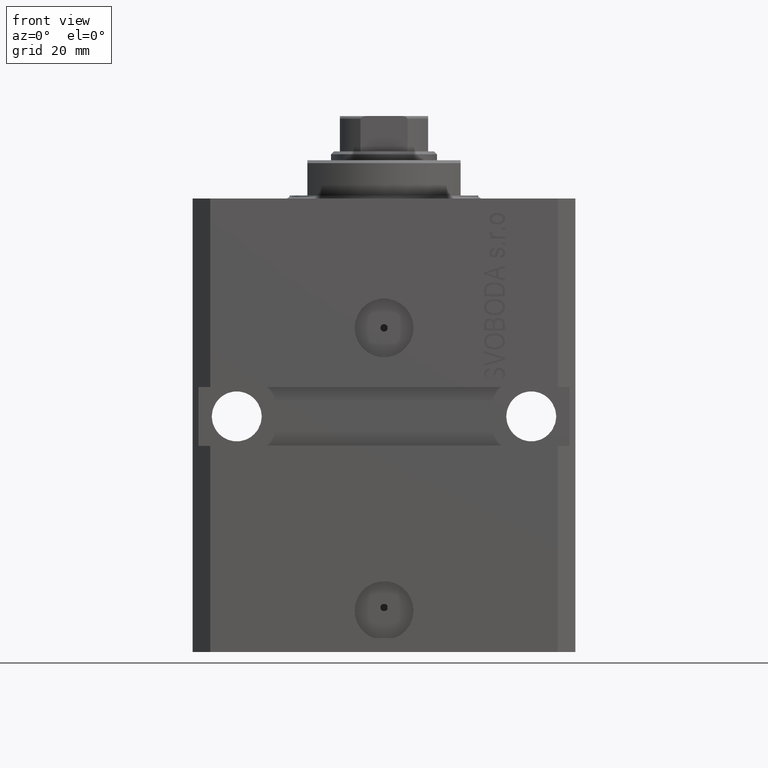
[diagram: clean part render]
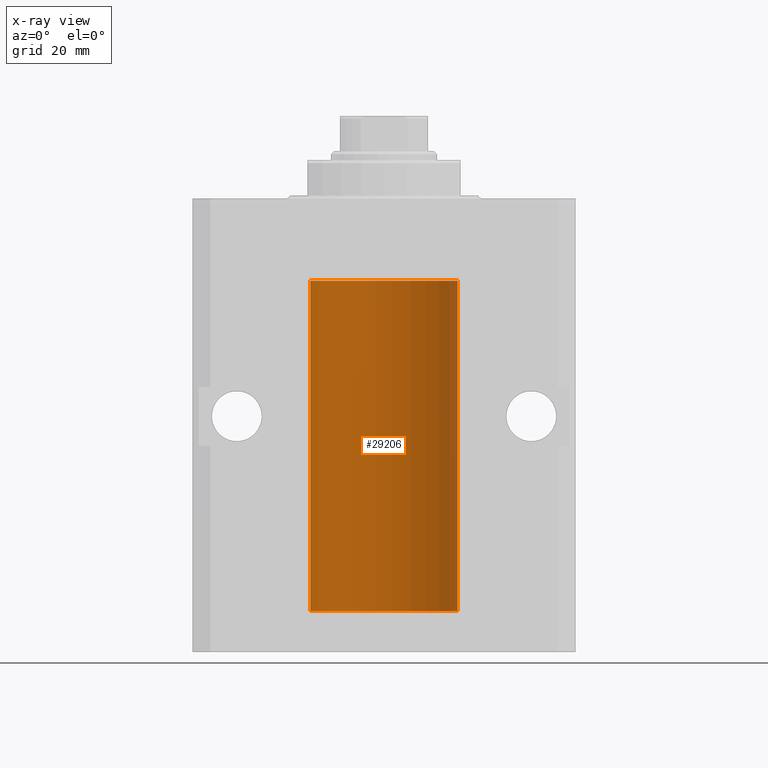
[diagram: x-ray — body ghosted, one internal face saturated and labeled with its STEP entity id]
A machine part, front view, then the same camera in x-ray: the body is ghosted and one INTERNAL B-rep face — a face not visible from any outside direction — is saturated and labeled: STEP entity #29206.
In plain terms, the highlighted cylindrical surface (partial cylindrical patch) has radius 12.5 mm, axis along (0, 0, 1).
Its self-contained STEP definition (entity closure, byte-faithful):
#816 = ORIENTED_EDGE ( 'NONE', *, *, #5009, .T. ) ;
#1518 = LINE ( 'NONE', #26101, #31913 ) ;
#1644 = B_SPLINE_CURVE_WITH_KNOTS ( 'NONE', 3,
 ( #26077, #33009, #22033, #26314, #43974, #21794, #36347, #14868 ),
 .UNSPECIFIED., .F., .F.,
 ( 4, 2, 2, 4 ),
 ( 0.0009773924225142606621, 0.001221629287363811033, 0.001465866152213361404, 0.001954339881912461711 ),
 .UNSPECIFIED. ) ;
#1859 = CARTESIAN_POINT ( 'NONE',  ( 12.49631206032075958, 0.3252904079142805438, -21.44139700214925526 ) ) ;
#1964 = EDGE_CURVE ( 'NONE', #12797, #20929, #11732, .T. ) ;
#2098 = CARTESIAN_POINT ( 'NONE',  ( 12.48520578595314845, 0.6087855079133686065, -21.83656717509346024 ) ) ;
#2174 = EDGE_LOOP ( 'NONE', ( #10690, #38177, #40612, #3910, #28392, #38168, #3973, #816, #12504, #29412 ) ) ;
#2660 = CARTESIAN_POINT ( 'NONE',  ( 12.50000000000000000, 0.000000000000000000, -70.09999999999999432 ) ) ;
#3010 = CARTESIAN_POINT ( 'NONE',  ( 12.49625698805481022, 0.3151108292486944906, -65.54593695688173227 ) ) ;
#3236 = CARTESIAN_POINT ( 'NONE',  ( 12.48436522214885969, 0.6250000000001505462, -65.16312747540307271 ) ) ;
#3910 = ORIENTED_EDGE ( 'NONE', *, *, #34456, .T. ) ;
#3935 = CARTESIAN_POINT ( 'NONE',  ( 12.50000000000000000, -1.836039810331332019E-15, -65.62500000000000000 ) ) ;
#3973 = ORIENTED_EDGE ( 'NONE', *, *, #17785, .T. ) ;
#5009 = EDGE_CURVE ( 'NONE', #13362, #10895, #47195, .T. ) ;
#5907 = CARTESIAN_POINT ( 'NONE',  ( 12.49999999999999112, 0.1631389616600886772, -21.37500000000019185 ) ) ;
#6196 = DIRECTION ( 'NONE',  ( 0.000000000000000000, 0.000000000000000000, 1.000000000000000000 ) ) ;
#7280 = CARTESIAN_POINT ( 'NONE',  ( 12.48809900631782099, 0.5573988467445673001, -65.32640147935475738 ) ) ;
#7352 = VECTOR ( 'NONE', #44527, 1000.000000000000000 ) ;
#7362 = CARTESIAN_POINT ( 'NONE',  ( 12.50000000000000000, -1.836039810331332019E-15, -65.62500000000000000 ) ) ;
#7387 = CIRCLE ( 'NONE', #31030, 12.50000000000000000 ) ;
#7501 = CARTESIAN_POINT ( 'NONE',  ( 12.48436522214846711, 0.6250000000078848039, -64.99999999999923261 ) ) ;
#8727 = CARTESIAN_POINT ( 'NONE',  ( 12.50000000000000000, 0.000000000000000000, -70.09999999999999432 ) ) ;
#10690 = ORIENTED_EDGE ( 'NONE', *, *, #44563, .F. ) ;
#10886 = CARTESIAN_POINT ( 'NONE',  ( 12.48436522214846889, 0.6250000000078781426, -21.99999999999923261 ) ) ;
#10895 = VERTEX_POINT ( 'NONE', #42904 ) ;
#11732 = CIRCLE ( 'NONE', #23188, 12.50000000000000000 ) ;
#12504 = ORIENTED_EDGE ( 'NONE', *, *, #36284, .T. ) ;
#12797 = VERTEX_POINT ( 'NONE', #2660 ) ;
#12976 = DIRECTION ( 'NONE',  ( 1.000000000000000000, 0.000000000000000000, 0.000000000000000000 ) ) ;
#13362 = VERTEX_POINT ( 'NONE', #28788 ) ;
#14012 = CARTESIAN_POINT ( 'NONE',  ( 12.50000000000000000, -6.043189914290669986E-17, -22.62500000000000000 ) ) ;
#14215 = CARTESIAN_POINT ( 'NONE',  ( 12.49421963472024721, 0.3844519291903572555, -65.49947303647046226 ) ) ;
#14447 = VERTEX_POINT ( 'NONE', #33921 ) ;
#14486 = CARTESIAN_POINT ( 'NONE',  ( 12.48809900631782099, 0.5573988467445616379, -22.32640147935473962 ) ) ;
#14868 = CARTESIAN_POINT ( 'NONE',  ( 12.50000000000017941, 3.868073689162038701E-13, -64.37499999999640465 ) ) ;
#15076 = VERTEX_POINT ( 'NONE', #18656 ) ;
#15164 = CARTESIAN_POINT ( 'NONE',  ( 12.50000000000000000, 0.000000000000000000, -70.09999999999999432 ) ) ;
#15377 = DIRECTION ( 'NONE',  ( -0.000000000000000000, -0.000000000000000000, 1.000000000000000000 ) ) ;
#15924 = VERTEX_POINT ( 'NONE', #7501 ) ;
#16194 = CARTESIAN_POINT ( 'NONE',  ( 12.48436522214846889, 0.6250000000078781426, -21.99999999999923261 ) ) ;
#16793 = VERTEX_POINT ( 'NONE', #7362 ) ;
#17785 = EDGE_CURVE ( 'NONE', #31607, #13362, #36627, .T. ) ;
#17950 = EDGE_CURVE ( 'NONE', #14447, #31607, #26162, .T. ) ;
#18254 = AXIS2_PLACEMENT_3D ( 'NONE', #21002, #46524, #21464 ) ;
#18656 = CARTESIAN_POINT ( 'NONE',  ( -12.50000000000000000, 1.530808498934191521E-15, -13.99999999999999822 ) ) ;
#18915 = EDGE_CURVE ( 'NONE', #29605, #15076, #7387, .T. ) ;
#19598 = CARTESIAN_POINT ( 'NONE',  ( 12.50000000000000178, 0.08262306818362646910, -22.62499999999997158 ) ) ;
#19743 = EDGE_CURVE ( 'NONE', #15924, #14447, #1644, .T. ) ;
#20483 = CARTESIAN_POINT ( 'NONE',  ( 12.48436522214888100, 0.6249999999996767031, -21.91847339462351130 ) ) ;
#20625 = DIRECTION ( 'NONE',  ( 0.000000000000000000, 0.000000000000000000, 1.000000000000000000 ) ) ;
#20771 = FACE_OUTER_BOUND ( 'NONE', #2174, .T. ) ;
#20929 = VERTEX_POINT ( 'NONE', #32257 ) ;
#21002 = CARTESIAN_POINT ( 'NONE',  ( 0.000000000000000000, 0.000000000000000000, -70.09999999999999432 ) ) ;
#21464 = DIRECTION ( 'NONE',  ( 1.000000000000000000, 0.000000000000000000, 0.000000000000000000 ) ) ;
#21794 = CARTESIAN_POINT ( 'NONE',  ( 12.49631206032076136, 0.3252904079142934779, -64.44139700214927302 ) ) ;
#21887 = CARTESIAN_POINT ( 'NONE',  ( 12.49915742890631876, 0.1636982395582408101, -22.60872397847025894 ) ) ;
#22033 = CARTESIAN_POINT ( 'NONE',  ( 12.48520578595314845, 0.6087855079133740466, -64.83656717509344958 ) ) ;
#22083 = LINE ( 'NONE', #15164, #24595 ) ;
#23188 = AXIS2_PLACEMENT_3D ( 'NONE', #42694, #6196, #42459 ) ;
#23341 = CARTESIAN_POINT ( 'NONE',  ( 12.50000000000017941, 3.868073565084946818E-13, -21.37499999999641176 ) ) ;
#24051 = CARTESIAN_POINT ( 'NONE',  ( 12.49012055744648997, 0.5002956126655978553, -21.61641710202404454 ) ) ;
#24345 = CYLINDRICAL_SURFACE ( 'NONE', #18254, 12.50000000000000000 ) ;
#24595 = VECTOR ( 'NONE', #40436, 1000.000000000000000 ) ;
#26077 = CARTESIAN_POINT ( 'NONE',  ( 12.48436522214846711, 0.6250000000078848039, -64.99999999999923261 ) ) ;
#26101 = CARTESIAN_POINT ( 'NONE',  ( -12.50000000000000000, 1.530808498934191521E-15, -70.09999999999999432 ) ) ;
#26162 = LINE ( 'NONE', #8727, #36322 ) ;
#26314 = CARTESIAN_POINT ( 'NONE',  ( 12.48810305280568222, 0.5461368461738485003, -64.68525466142676805 ) ) ;
#27402 = CARTESIAN_POINT ( 'NONE',  ( 12.48810305280568222, 0.5461368461738450586, -21.68525466142676805 ) ) ;
#27810 = CARTESIAN_POINT ( 'NONE',  ( 12.50000000000000000, -6.043189914290669986E-17, -22.62500000000000000 ) ) ;
#28392 = ORIENTED_EDGE ( 'NONE', *, *, #19743, .T. ) ;
#28788 = CARTESIAN_POINT ( 'NONE',  ( 12.48436522214846889, 0.6250000000078781426, -21.99999999999923261 ) ) ;
#29033 = CARTESIAN_POINT ( 'NONE',  ( 12.49625698805481200, 0.3151108292486943241, -22.54593695688172161 ) ) ;
#29206 = ADVANCED_FACE ( 'NONE', ( #20771 ), #24345, .F. ) ;
#29242 = B_SPLINE_CURVE_WITH_KNOTS ( 'NONE', 3,
 ( #3935, #39977, #47148, #3010, #14215, #7280, #3236, #39288 ),
 .UNSPECIFIED., .F., .F.,
 ( 4, 2, 2, 4 ),
 ( 1.784246692340212412E-18, 0.0002443481056285665750, 0.0004886962112571313068, 0.0009773924225142606621 ),
 .UNSPECIFIED. ) ;
#29412 = ORIENTED_EDGE ( 'NONE', *, *, #18915, .T. ) ;
#29605 = VERTEX_POINT ( 'NONE', #44703 ) ;
#29990 = DIRECTION ( 'NONE',  ( -0.000000000000000000, -0.000000000000000000, 1.000000000000000000 ) ) ;
#31030 = AXIS2_PLACEMENT_3D ( 'NONE', #45680, #20625, #12976 ) ;
#31607 = VERTEX_POINT ( 'NONE', #27810 ) ;
#31913 = VECTOR ( 'NONE', #15377, 1000.000000000000000 ) ;
#32257 = CARTESIAN_POINT ( 'NONE',  ( -12.50000000000000000, 1.530808498934191521E-15, -70.09999999999999432 ) ) ;
#33009 = CARTESIAN_POINT ( 'NONE',  ( 12.48436522214888100, 0.6249999999996834754, -64.91847339462351840 ) ) ;
#33340 = CARTESIAN_POINT ( 'NONE',  ( 12.49421963472024721, 0.3844519291903548686, -22.49947303647045871 ) ) ;
#33921 = CARTESIAN_POINT ( 'NONE',  ( 12.50000000000017941, 3.868073689162038701E-13, -64.37499999999640465 ) ) ;
#34456 = EDGE_CURVE ( 'NONE', #16793, #15924, #29242, .T. ) ;
#36284 = EDGE_CURVE ( 'NONE', #10895, #29605, #22083, .T. ) ;
#36322 = VECTOR ( 'NONE', #29990, 1000.000000000000000 ) ;
#36347 = CARTESIAN_POINT ( 'NONE',  ( 12.49999999999999822, 0.1631389616600901760, -64.37500000000022737 ) ) ;
#36627 = B_SPLINE_CURVE_WITH_KNOTS ( 'NONE', 3,
 ( #14012, #19598, #21887, #29033, #33340, #14486, #43580, #10886 ),
 .UNSPECIFIED., .F., .F.,
 ( 4, 2, 2, 4 ),
 ( 5.872716678082737689E-20, 0.0002443481056285632140, 0.0004886962112571263195, 0.0009773924225142526390 ),
 .UNSPECIFIED. ) ;
#36905 = LINE ( 'NONE', #40242, #7352 ) ;
#38168 = ORIENTED_EDGE ( 'NONE', *, *, #17950, .T. ) ;
#38177 = ORIENTED_EDGE ( 'NONE', *, *, #1964, .F. ) ;
#39288 = CARTESIAN_POINT ( 'NONE',  ( 12.48436522214846711, 0.6250000000078848039, -64.99999999999923261 ) ) ;
#39977 = CARTESIAN_POINT ( 'NONE',  ( 12.49999999999999822, 0.08262306818362624705, -65.62500000000000000 ) ) ;
#40242 = CARTESIAN_POINT ( 'NONE',  ( 12.50000000000000000, 0.000000000000000000, -70.09999999999999432 ) ) ;
#40395 = EDGE_CURVE ( 'NONE', #12797, #16793, #36905, .T. ) ;
#40436 = DIRECTION ( 'NONE',  ( -0.000000000000000000, -0.000000000000000000, 1.000000000000000000 ) ) ;
#40612 = ORIENTED_EDGE ( 'NONE', *, *, #40395, .T. ) ;
#42459 = DIRECTION ( 'NONE',  ( 1.000000000000000000, 0.000000000000000000, 0.000000000000000000 ) ) ;
#42694 = CARTESIAN_POINT ( 'NONE',  ( 0.000000000000000000, 0.000000000000000000, -70.09999999999999432 ) ) ;
#42904 = CARTESIAN_POINT ( 'NONE',  ( 12.50000000000017941, 3.868073565084946818E-13, -21.37499999999641176 ) ) ;
#43580 = CARTESIAN_POINT ( 'NONE',  ( 12.48436522214885080, 0.6250000000001435518, -22.16312747540306560 ) ) ;
#43974 = CARTESIAN_POINT ( 'NONE',  ( 12.49012055744648997, 0.5002956126656082914, -64.61641710202404454 ) ) ;
#44527 = DIRECTION ( 'NONE',  ( -0.000000000000000000, -0.000000000000000000, 1.000000000000000000 ) ) ;
#44563 = EDGE_CURVE ( 'NONE', #20929, #15076, #1518, .T. ) ;
#44703 = CARTESIAN_POINT ( 'NONE',  ( 12.50000000000000000, 0.000000000000000000, -13.99999999999999822 ) ) ;
#45680 = CARTESIAN_POINT ( 'NONE',  ( 0.000000000000000000, 0.000000000000000000, -13.99999999999999822 ) ) ;
#46524 = DIRECTION ( 'NONE',  ( -0.000000000000000000, -0.000000000000000000, 1.000000000000000000 ) ) ;
#47148 = CARTESIAN_POINT ( 'NONE',  ( 12.49915742890631876, 0.1636982395582385896, -65.60872397847025184 ) ) ;
#47195 = B_SPLINE_CURVE_WITH_KNOTS ( 'NONE', 3,
 ( #16194, #20483, #2098, #27402, #24051, #1859, #5907, #23341 ),
 .UNSPECIFIED., .F., .F.,
 ( 4, 2, 2, 4 ),
 ( 0.0009773924225142526390, 0.001221629287363798890, 0.001465866152213344924, 0.001954339881912444798 ),
 .UNSPECIFIED. ) ;